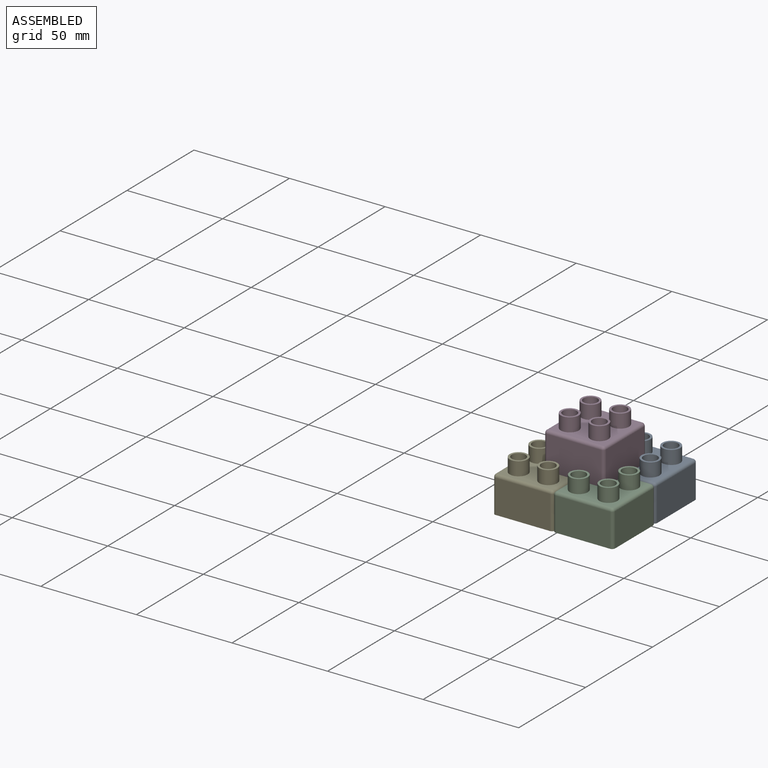
[diagram: assembled view]
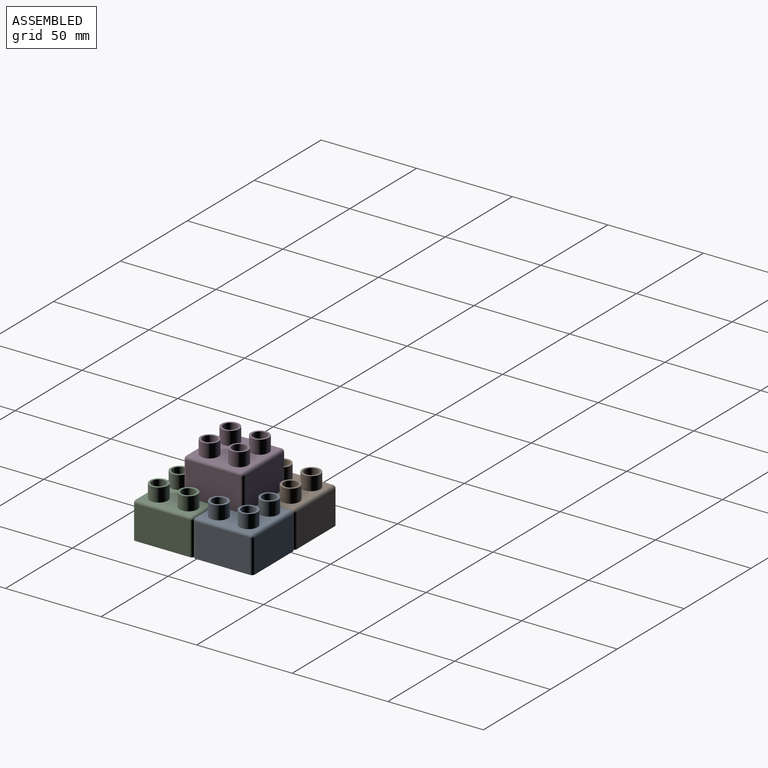
[diagram: assembled view, second angle]
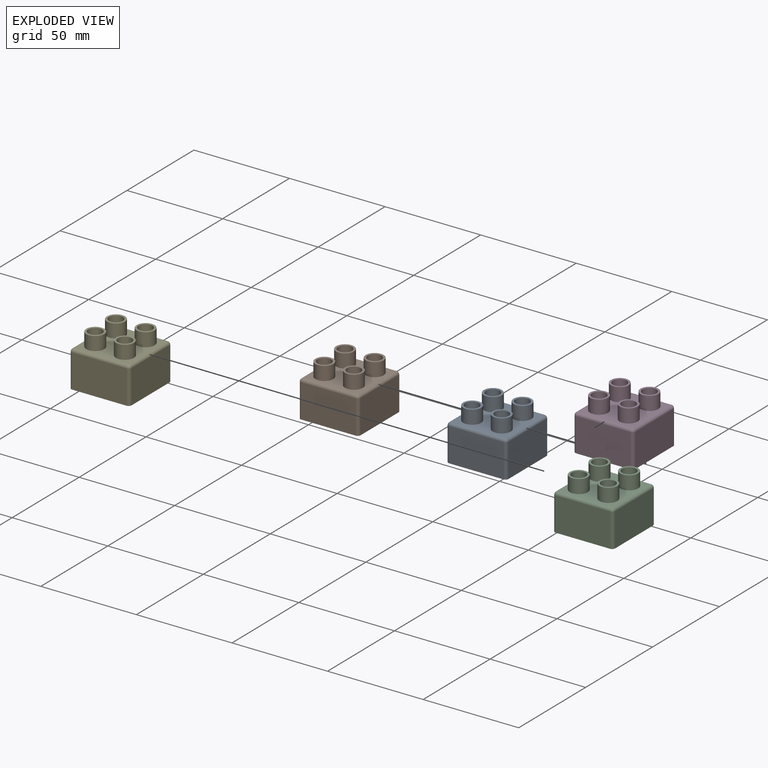
[diagram: exploded view]
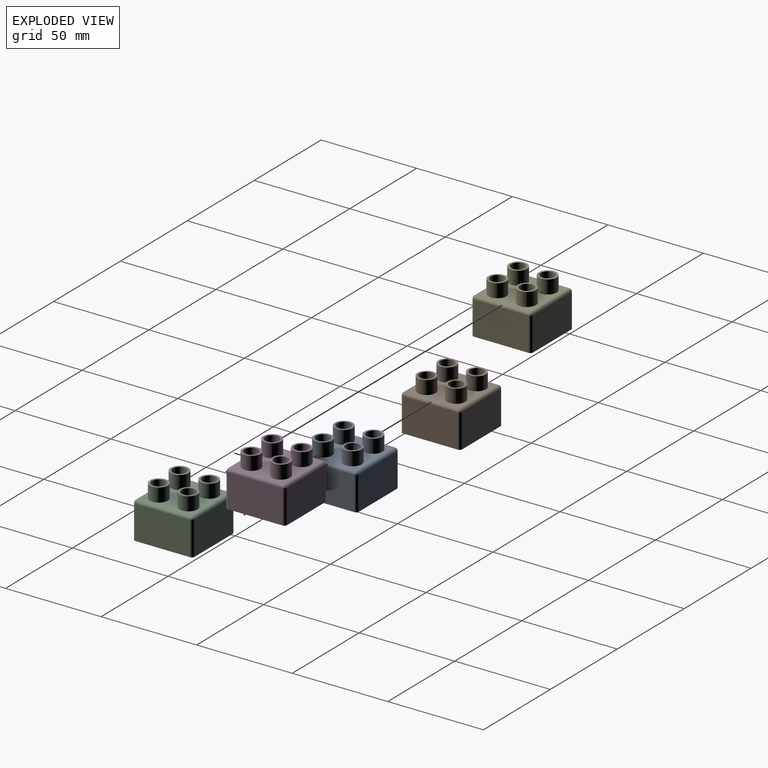
[diagram: exploded view, second angle]
ASSEMBLY  parts=5 mates=4
PART A: 43 faces, bbox 31.4x31.4x26.2 mm
  f0: plane 31.45x31.45mm, normal (0,0,-1), area 180.4mm2, adj f1,f2,f3,f4,f10,f11,f12,f13
  f1: plane 28.4x17.53mm, normal (1,0,0), area 497.7mm2, adj f0,f27,f31,f33
  f2: plane 28.4x17.53mm, normal (0,1,0), area 497.7mm2, adj f0,f28,f33,f35
  f3: plane 28.4x17.53mm, normal (-1,0,0), area 497.7mm2, adj f0,f30,f35,f37
  f4: plane 28.4x17.53mm, normal (0,-1,0), area 497.7mm2, adj f0,f29,f31,f37
  f5: plane 28.4x28.4mm, normal (0,0,1), area 528.9mm2, adj f7,f16,f20,f24,f27,f28,f29,f30
  f6: cylinder r=3.63mm len=7.26mm, axis (0,0,-1), area 162.3mm2, adj f8,f9
  f7: cylinder r=4.7mm len=9.4mm, axis (0,0,-1), area 210mm2, adj f5,f8
  f8: plane 9.4x9.4mm, normal (0,0,1), area 27.9mm2, adj f6,f7
  f9: plane 7.26x7.26mm, normal (0,0,1), area 41.4mm2, adj f6
  f10: plane 28.4x17.53mm, normal (-1,0,0), area 497.7mm2, adj f0,f11,f13,f14
  f11: plane 28.4x17.53mm, normal (0,-1,0), area 497.7mm2, adj f0,f10,f12,f14
  f12: plane 28.4x17.53mm, normal (1,0,0), area 497.7mm2, adj f0,f11,f13,f14
  f13: plane 28.4x17.53mm, normal (0,1,0), area 497.7mm2, adj f0,f10,f12,f14
  f14: plane 28.4x28.4mm, normal (0,0,-1), area 669.4mm2, adj f10,f11,f12,f13,f40
  f15: cylinder r=3.63mm len=7.26mm, axis (0,0,-1), area 162.3mm2, adj f17,f18
  f16: cylinder r=4.7mm len=9.4mm, axis (0,0,-1), area 210mm2, adj f5,f17
  f17: plane 9.4x9.4mm, normal (0,0,1), area 27.9mm2, adj f15,f16
  f18: plane 7.26x7.26mm, normal (0,0,1), area 41.4mm2, adj f15
  f19: cylinder r=3.63mm len=7.26mm, axis (0,0,-1), area 162.3mm2, adj f21,f22
  f20: cylinder r=4.7mm len=9.4mm, axis (0,0,-1), area 210mm2, adj f5,f21
  f21: plane 9.4x9.4mm, normal (0,0,1), area 27.9mm2, adj f19,f20
  f22: plane 7.26x7.26mm, normal (0,0,1), area 41.4mm2, adj f19
  f23: cylinder r=3.63mm len=7.26mm, axis (0,0,-1), area 162.3mm2, adj f25,f26
  f24: cylinder r=4.7mm len=9.4mm, axis (0,0,-1), area 210mm2, adj f5,f25
  f25: plane 9.4x9.4mm, normal (0,0,1), area 27.9mm2, adj f23,f24
  f26: plane 7.26x7.26mm, normal (0,0,1), area 41.4mm2, adj f23
  f27: cylinder r=1.52mm len=28.4mm, axis (0,-1,0), area 68mm2, adj f1,f5,f32,f34
  f28: cylinder r=1.52mm len=28.4mm, axis (1,0,0), area 68mm2, adj f2,f5,f34,f36
  f29: cylinder r=1.52mm len=28.4mm, axis (-1,0,0), area 68mm2, adj f4,f5,f32,f38
  f30: cylinder r=1.52mm len=28.4mm, axis (0,1,0), area 68mm2, adj f3,f5,f36,f38
  f31: cylinder r=1.52mm len=17.53mm, axis (0,0,-1), area 42mm2, adj f0,f1,f4,f32
  f32: sphere r=1.52mm, area 3.6mm2, adj f27,f29,f31
  f33: cylinder r=1.52mm len=17.53mm, axis (0,0,1), area 42mm2, adj f0,f1,f2,f34
  f34: sphere r=1.52mm, area 3.6mm2, adj f27,f28,f33
  f35: cylinder r=1.52mm len=17.53mm, axis (0,0,-1), area 42mm2, adj f0,f2,f3,f36
  f36: sphere r=1.52mm, area 3.6mm2, adj f28,f30,f35
  f37: cylinder r=1.52mm len=17.53mm, axis (0,0,1), area 42mm2, adj f0,f3,f4,f38
  f38: sphere r=1.52mm, area 3.6mm2, adj f29,f30,f37
  f39: plane 13.21x13.21mm, normal (0,0,-1), area 38.9mm2, adj f40,f41
  f40: cylinder r=6.6mm len=17.53mm, axis (0,0,1), area 727.2mm2, adj f14,f39
  f41: cylinder r=5.59mm len=17.53mm, axis (0,0,1), area 615.3mm2, adj f39,f42
  f42: plane 11.18x11.18mm, normal (0,0,-1), area 98.1mm2, adj f41
PART B: same geometry as A
PART C: same geometry as A
PART D: same geometry as A
PART E: same geometry as A
PLACE A t=(15.68,15.61,-16.18)mm
PLACE B t=(-15.77,15.61,-16.18)mm
PLACE C t=(15.68,-15.83,-16.18)mm
PLACE D t=(0.04,-0.24,2.87)mm
PLACE E t=(-15.77,-15.83,-16.18)mm
MATE fastened E.f1 <-> C.f3  axis (1,0,0) through (-0.04,-15.83,-7.42)mm
MATE fastened A.f4 <-> C.f2  axis (0,-1,0) through (15.68,-0.11,-7.42)mm
MATE planar A.f5 <-> D.f40  axis (0,0,1) through (15.73,15.56,2.87)mm
MATE fastened B.f1 <-> A.f3  axis (1,0,0) through (-0.04,15.61,-7.42)mm
